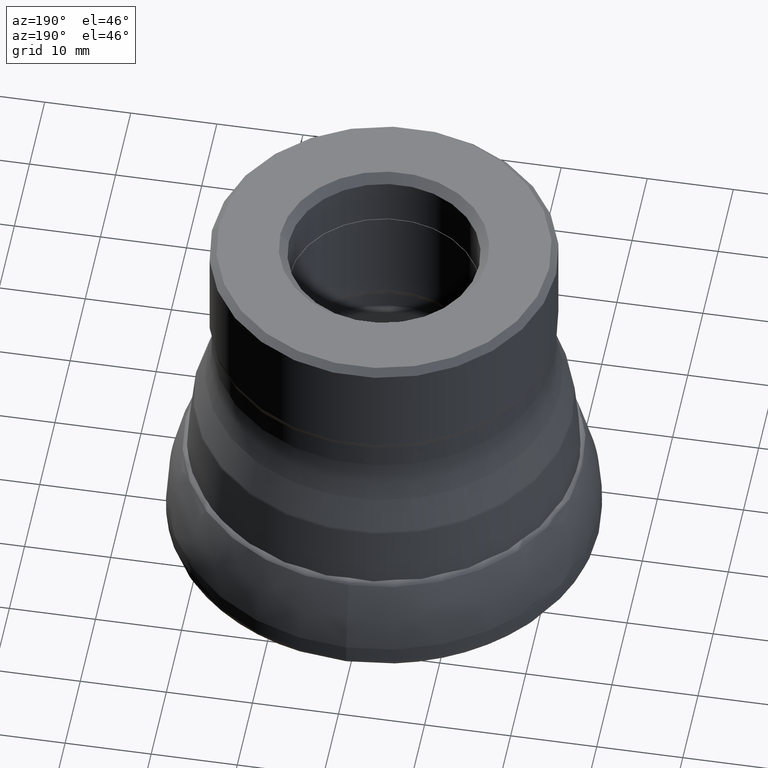
[diagram: clean part render]
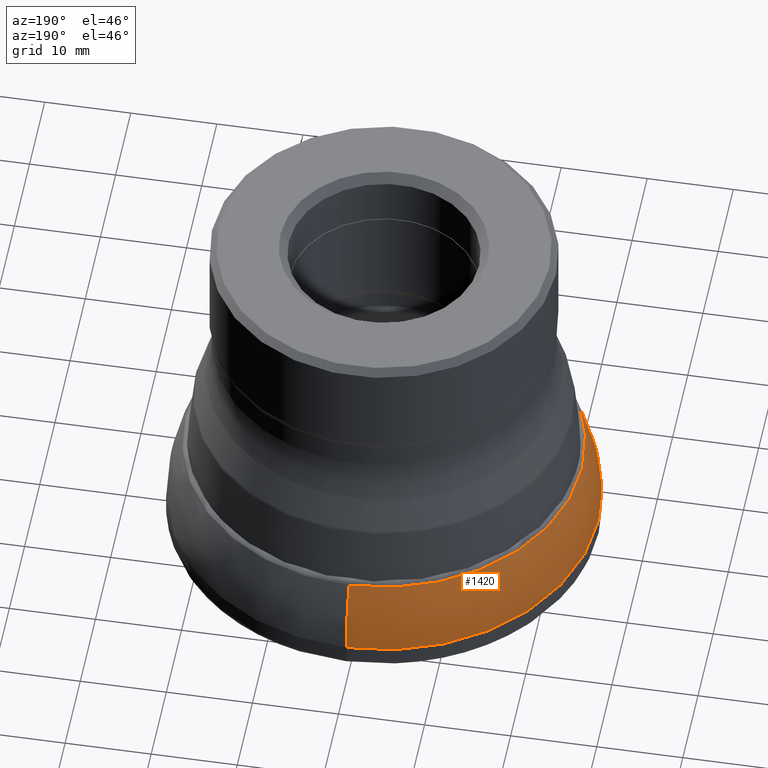
[diagram: same view with one face highlighted and labeled with its STEP entity id]
A machine part, auxiliary view. The second image highlights one B-rep face of the part: STEP entity #1420.
In plain terms, the highlighted face is a freeform B-spline surface patch.
Its self-contained STEP definition (entity closure, byte-faithful):
#19 = CARTESIAN_POINT ( 'NONE',  ( 1.637695884795258400E-013, -23.45273718887886000, -11.94174610841723100 ) ) ;
#27 = EDGE_CURVE ( 'NONE', #2843, #1379, #2055, .T. ) ;
#39 = CARTESIAN_POINT ( 'NONE',  ( 1.611329919527518100E-013, -23.07516155966933300, -12.91075774158583100 ) ) ;
#62 = CARTESIAN_POINT ( 'NONE',  ( -1.095629021342701400E-014, 24.67137226127644200, -7.191401456064427900 ) ) ;
#67 = CARTESIAN_POINT ( 'NONE',  ( 1.717524934167246500E-013, -24.59593461175895300, -7.651955085207505100 ) ) ;
#74 = CARTESIAN_POINT ( 'NONE',  ( 1.704946417210949600E-013, -24.41580308969753300, -8.585308474594739900 ) ) ;
#91 = CARTESIAN_POINT ( 'NONE',  ( -1.107387611861449000E-014, 24.93615218066963000, -4.530690978039407600 ) ) ;
#120 = CARTESIAN_POINT ( 'NONE',  ( -1.736501701411937400E-013, 24.86769271960808300, -5.573869614410038600 ) ) ;
#124 = CARTESIAN_POINT ( 'NONE',  ( 1.731382138776598300E-013, -24.79437766879593100, -6.284141263681696900 ) ) ;
#147 = CARTESIAN_POINT ( 'NONE',  ( -1.691232385893373300E-013, 24.21941035568797000, -9.438302989123156900 ) ) ;
#196 = CARTESIAN_POINT ( 'NONE',  ( -47.56643853140923300, -23.78321926570487900, -10.97322852328703400 ) ) ;
#207 = CARTESIAN_POINT ( 'NONE',  ( -46.29577894291878000, 23.14788947145921200, -12.73419449725517800 ) ) ;
#227 = CARTESIAN_POINT ( 'NONE',  ( 1.616408482464067300E-013, -23.14788947145923000, -12.73419449725518300 ) ) ;
#266 = CARTESIAN_POINT ( 'NONE',  ( 1.741282200027210600E-013, -24.93615218066963000, -4.530690978039413800 ) ) ;
#315 = AXIS2_PLACEMENT_3D ( 'NONE', #2488, #1253, #359 ) ;
#327 = CARTESIAN_POINT ( 'NONE',  ( -1.106505801608547400E-014, 24.91629557903774700, -4.916599764276681700 ) ) ;
#334 = CARTESIAN_POINT ( 'NONE',  ( -1.642597091873621100E-013, 23.52292526383484600, -11.74859640136338800 ) ) ;
#358 = CARTESIAN_POINT ( 'NONE',  ( -49.47485758669925100, -24.73742879334989600, -6.735362749791277400 ) ) ;
#359 = DIRECTION ( 'NONE',  ( 0.0000000000000000000, 1.000000000000000000, 1.503541781487458300E-016 ) ) ;
#366 = CARTESIAN_POINT ( 'NONE',  ( -1.700659019349354500E-013, 24.35440511208418400, -8.869109861484815800 ) ) ;
#387 = CARTESIAN_POINT ( 'NONE',  ( -1.740786323446743500E-013, 24.92905094580192600, -4.683872169119760900 ) ) ;
#390 = CARTESIAN_POINT ( 'NONE',  ( 1.697599178910833000E-013, -24.31058645545152400, -9.057416699671613000 ) ) ;
#415 = CARTESIAN_POINT ( 'NONE',  ( 1.660773324876438100E-013, -23.78321926570454200, -10.97322852328703400 ) ) ;
#424 = CARTESIAN_POINT ( 'NONE',  ( -1.084279470195851600E-014, 24.41580308969753700, -8.585308474594732800 ) ) ;
#495 = CARTESIAN_POINT ( 'NONE',  ( 1.626198904318173900E-013, -23.28809388477210300, -12.38239787145869100 ) ) ;
#540 = CARTESIAN_POINT ( 'NONE',  ( -49.87230436133960900, 24.93615218066960900, -4.530690978039407600 ) ) ;
#554 = CARTESIAN_POINT ( 'NONE',  ( -1.062770700212759300E-014, 23.93146864729228800, -10.49097506306470800 ) ) ;
#557 = CARTESIAN_POINT ( 'NONE',  ( 1.737508360184892000E-013, -24.88210864619138400, -5.397273047007519000 ) ) ;
#564 = CARTESIAN_POINT ( 'NONE',  ( -1.034199121220253100E-014, 23.28809388477210600, -12.38239787145868600 ) ) ;
#565 = CARTESIAN_POINT ( 'NONE',  ( -49.68513281558264800, -24.84256640779159000, -5.838024925649479600 ) ) ;
#571 = CARTESIAN_POINT ( 'NONE',  ( -1.739579527909446700E-013, 24.91176894684246800, -4.995310742142274700 ) ) ;
#574 = CARTESIAN_POINT ( 'NONE',  ( -1.098562520656078700E-014, 24.73742879334954700, -6.735362749791271100 ) ) ;
#586 = CARTESIAN_POINT ( 'NONE',  ( 1.717524934167246500E-013, -24.59593461175895300, -7.651955085207505100 ) ) ;
#618 = CARTESIAN_POINT ( 'NONE',  ( -46.15032311934747600, 23.07516155967356400, -12.91075774158755100 ) ) ;
#624 = CARTESIAN_POINT ( 'NONE',  ( -1.049106352159481100E-014, 23.62377488328724700, -11.45699947641913100 ) ) ;
#642 = CARTESIAN_POINT ( 'NONE',  ( 1.704946417210949600E-013, -24.41580308969753300, -8.585308474594739900 ) ) ;
#655 = CARTESIAN_POINT ( 'NONE',  ( -49.02166748683928400, 24.51083374341945700, -8.116703194540388500 ) ) ;
#731 = CIRCLE ( 'NONE', #2548, 24.93615218066963000 ) ;
#768 = CARTESIAN_POINT ( 'NONE',  ( -47.86293729458490300, 23.93146864729226300, -10.49097506306470800 ) ) ;
#777 = CARTESIAN_POINT ( 'NONE',  ( -1.107125202241970700E-014, 24.93024324134711700, -4.658153085730059900 ) ) ;
#781 = CARTESIAN_POINT ( 'NONE',  ( -1.074471242927419200E-014, 24.19494144634119700, -9.532657396468394500 ) ) ;
#788 = CARTESIAN_POINT ( 'NONE',  ( -49.83259115807582900, 24.91629557903772300, -4.916599764276681700 ) ) ;
#805 = CARTESIAN_POINT ( 'NONE',  ( -1.732837028914779000E-013, 24.81521252364672100, -6.106026376663790800 ) ) ;
#809 = CARTESIAN_POINT ( 'NONE',  ( -1.068862259963463800E-014, 24.06863837840914000, -10.01064354502307200 ) ) ;
#817 = CARTESIAN_POINT ( 'NONE',  ( -49.19186922351805400, -24.59593461175929400, -7.651955085207504200 ) ) ;
#842 = VERTEX_POINT ( 'NONE', #2280 ) ;
#864 = CARTESIAN_POINT ( 'NONE',  ( 1.689523731086051700E-013, -24.19494144634119300, -9.532657396468399800 ) ) ;
#870 = CARTESIAN_POINT ( 'NONE',  ( 1.680704034991583300E-013, -24.06863837840913700, -10.01064354502307700 ) ) ;
#968 = DIRECTION ( 'NONE',  ( -0.0000000000000000000, 1.249000902703301100E-016, -1.000000000000000000 ) ) ;
#974 = CARTESIAN_POINT ( 'NONE',  ( 0.0000000000000000000, 5.658837121440925400E-016, -4.530690978039410200 ) ) ;
#997 = CARTESIAN_POINT ( 'NONE',  ( 1.741282200027210600E-013, -24.93615218066963000, -4.530690978039413800 ) ) ;
#999 = CARTESIAN_POINT ( 'NONE',  ( -47.86293729458471800, -23.93146864729261800, -10.49097506306471300 ) ) ;
#1002 = B_SPLINE_CURVE_WITH_KNOTS ( 'NONE', 3,
 ( #2245, #1503, #2513, #334, #1102, #2027, #1545, #147, #366, #2462, #2001, #1272, #1732, #805, #120, #571, #387, #1294 ),
 .UNSPECIFIED., .F., .F.,
 ( 4, 1, 1, 1, 1, 1, 1, 1, 1, 1, 1, 1, 1, 1, 1, 4 ),
 ( 0.0000000000000000000, 0.07267986867399556200, 0.1446294744445777400, 0.2158145697562261500, 0.2862023623196668900, 0.3557615538478332600, 0.4244623703952659100, 0.4922765844683259000, 0.5591775291410866500, 0.6251401044720856800, 0.6901407765700804400, 0.7541575697021007900, 0.8171700518745362900, 0.8791593143475747700, 0.9401079455654619600, 1.000000000000000000 ),
 .UNSPECIFIED. ) ;
#1012 = CARTESIAN_POINT ( 'NONE',  ( -49.87230436133943100, -24.93615218066997500, -4.530690978039413800 ) ) ;
#1024 = CARTESIAN_POINT ( 'NONE',  ( 1.680704034991583300E-013, -24.06863837840913700, -10.01064354502307700 ) ) ;
#1038 = CARTESIAN_POINT ( 'NONE',  ( 1.734747140435488200E-013, -24.84256640779124200, -5.838024925649479600 ) ) ;
#1044 = CARTESIAN_POINT ( 'NONE',  ( -1.092278916725983800E-014, 24.59593461175895600, -7.651955085207498900 ) ) ;
#1051 = CARTESIAN_POINT ( 'NONE',  ( 1.626198904318173900E-013, -23.28809388477210300, -12.38239787145869100 ) ) ;
#1090 = CARTESIAN_POINT ( 'NONE',  ( -48.38988289268273500, 24.19494144634117900, -9.532657396468394500 ) ) ;
#1102 = CARTESIAN_POINT ( 'NONE',  ( -1.656452306680181900E-013, 23.72133982576333700, -11.16749861297149800 ) ) ;
#1113 = CARTESIAN_POINT ( 'NONE',  ( -1.101091558765962300E-014, 24.79437766879593100, -6.284141263681690700 ) ) ;
#1138 = EDGE_CURVE ( 'NONE', #1379, #842, #731, .T. ) ;
#1214 = CARTESIAN_POINT ( 'NONE',  ( -49.34274452255302600, -24.67137226127678000, -7.191401456064433300 ) ) ;
#1224 = CARTESIAN_POINT ( 'NONE',  ( -46.90547437775786900, -23.45273718887918300, -11.94174610841723100 ) ) ;
#1237 = CARTESIAN_POINT ( 'NONE',  ( -47.56643853140941800, 23.78321926570452400, -10.97322852328702900 ) ) ;
#1253 = DIRECTION ( 'NONE',  ( -0.0000000000000000000, 1.249000902703301100E-016, -1.000000000000000000 ) ) ;
#1272 = CARTESIAN_POINT ( 'NONE',  ( -1.722827192628983800E-013, 24.67186597078913800, -7.192351833296965100 ) ) ;
#1287 = VERTEX_POINT ( 'NONE', #2789 ) ;
#1294 = CARTESIAN_POINT ( 'NONE',  ( -1.741282200027210600E-013, 24.93615218066963000, -4.530690978039397800 ) ) ;
#1315 = ORIENTED_EDGE ( 'NONE', *, *, #2716, .F. ) ;
#1321 = FACE_OUTER_BOUND ( 'NONE', #1715, .T. ) ;
#1323 = CARTESIAN_POINT ( 'NONE',  ( -47.24754976657482100, 23.62377488328722600, -11.45699947641913100 ) ) ;
#1379 = VERTEX_POINT ( 'NONE', #997 ) ;
#1387 = EDGE_CURVE ( 'NONE', #2843, #1287, #1773, .T. ) ;
#1406 = ORIENTED_EDGE ( 'NONE', *, *, #27, .T. ) ;
#1420 = ADVANCED_FACE ( 'NONE', ( #1321 ), #2040, .T. ) ;
#1456 = CARTESIAN_POINT ( 'NONE',  ( -48.62117291090321900, -24.31058645545186500, -9.057416699671613000 ) ) ;
#1462 = CARTESIAN_POINT ( 'NONE',  ( -1.056187105139752900E-014, 23.78321926570454500, -10.97322852328702900 ) ) ;
#1479 = CARTESIAN_POINT ( 'NONE',  ( 1.671125523862610900E-013, -23.93146864729228400, -10.49097506306471300 ) ) ;
#1480 = CARTESIAN_POINT ( 'NONE',  ( -49.76421729238293100, -24.88210864619172800, -5.397273047007519000 ) ) ;
#1497 = CARTESIAN_POINT ( 'NONE',  ( -49.58875533759201900, -24.79437766879627600, -6.284141263681696900 ) ) ;
#1503 = CARTESIAN_POINT ( 'NONE',  ( -1.617419184204699800E-013, 23.16236329564080500, -12.69905605738181700 ) ) ;
#1545 = CARTESIAN_POINT ( 'NONE',  ( -1.680739020206743700E-013, 24.06913938660258600, -10.01156377887556700 ) ) ;
#1547 = CARTESIAN_POINT ( 'NONE',  ( -48.38988289268254300, -24.19494144634153100, -9.532657396468399800 ) ) ;
#1564 = CARTESIAN_POINT ( 'NONE',  ( 1.649639383160570800E-013, -23.62377488328724300, -11.45699947641913500 ) ) ;
#1569 = ORIENTED_EDGE ( 'NONE', *, *, #1387, .F. ) ;
#1573 = CARTESIAN_POINT ( 'NONE',  ( -48.83160617939542200, 24.41580308969751900, -8.585308474594734600 ) ) ;
#1621 = DIRECTION ( 'NONE',  ( 0.0000000000000000000, 1.000000000000000000, 1.391332121658734000E-016 ) ) ;
#1692 = CARTESIAN_POINT ( 'NONE',  ( 1.731382138776598300E-013, -24.79437766879593100, -6.284141263681696900 ) ) ;
#1715 = EDGE_LOOP ( 'NONE', ( #1569, #1406, #2909, #1315 ) ) ;
#1725 = CARTESIAN_POINT ( 'NONE',  ( -48.13727675681860800, 24.06863837840911600, -10.01064354502307000 ) ) ;
#1732 = CARTESIAN_POINT ( 'NONE',  ( -1.728284422590970300E-013, 24.75001660990718500, -6.645677643369372900 ) ) ;
#1734 = CARTESIAN_POINT ( 'NONE',  ( 1.727405420058815100E-013, -24.73742879334954700, -6.735362749791277400 ) ) ;
#1773 = CIRCLE ( 'NONE', #315, 23.07516155966933300 ) ;
#1786 = CARTESIAN_POINT ( 'NONE',  ( 1.689523731086051700E-013, -24.19494144634119300, -9.532657396468399800 ) ) ;
#1797 = CARTESIAN_POINT ( 'NONE',  ( -48.62117291090339700, 24.31058645545150700, -9.057416699671605900 ) ) ;
#1802 = CARTESIAN_POINT ( 'NONE',  ( 1.711582372292713400E-013, -24.51083374341947200, -8.116703194540395600 ) ) ;
#1803 = CARTESIAN_POINT ( 'NONE',  ( 1.711582372292713400E-013, -24.51083374341947200, -8.116703194540395600 ) ) ;
#1859 = CARTESIAN_POINT ( 'NONE',  ( 1.616408482464067300E-013, -23.14788947145923000, -12.73419449725518300 ) ) ;
#1914 = CARTESIAN_POINT ( 'NONE',  ( -49.86048648269457600, 24.93024324134709600, -4.658153085730059900 ) ) ;
#1919 = CARTESIAN_POINT ( 'NONE',  ( -1.041510752703040600E-014, 23.45273718887886400, -11.94174610841722600 ) ) ;
#1944 = CARTESIAN_POINT ( 'NONE',  ( 1.740869580999672000E-013, -24.93024324134711700, -4.658153085730066100 ) ) ;
#1946 = CARTESIAN_POINT ( 'NONE',  ( 1.741282200027210600E-013, -24.93615218066963000, -4.530690978039413800 ) ) ;
#1953 = CARTESIAN_POINT ( 'NONE',  ( 1.697599178910833000E-013, -24.31058645545152400, -9.057416699671613000 ) ) ;
#1955 = CARTESIAN_POINT ( 'NONE',  ( 1.740869580999672000E-013, -24.93024324134711700, -4.658153085730066100 ) ) ;
#1963 = CARTESIAN_POINT ( 'NONE',  ( -49.68513281558284000, 24.84256640779121700, -5.838024925649473400 ) ) ;
#1969 = CARTESIAN_POINT ( 'NONE',  ( -46.29577894291859500, -23.14788947145955000, -12.73419449725518300 ) ) ;
#1974 = CARTESIAN_POINT ( 'NONE',  ( -49.47485758669944300, 24.73742879334953000, -6.735362749791271100 ) ) ;
#2001 = CARTESIAN_POINT ( 'NONE',  ( -1.716425254945201000E-013, 24.58018657940072400, -7.745524957410780500 ) ) ;
#2027 = CARTESIAN_POINT ( 'NONE',  ( -1.669151393530979400E-013, 23.90319797733812000, -10.58819071384855800 ) ) ;
#2030 = CARTESIAN_POINT ( 'NONE',  ( -47.24754976657463600, -23.62377488328757400, -11.45699947641913700 ) ) ;
#2040 =( BOUNDED_SURFACE ( )  B_SPLINE_SURFACE ( 3, 3, ( 
 ( #2292, #2256, #618, #2565 ),
 ( #1859, #1969, #207, #2240 ),
 ( #495, #2181, #2830, #564 ),
 ( #2396, #1224, #2856, #1919 ),
 ( #1564, #2030, #1323, #624 ),
 ( #415, #196, #1237, #1462 ),
 ( #2861, #999, #768, #554 ),
 ( #1024, #2445, #1725, #809 ),
 ( #1786, #1547, #1090, #781 ),
 ( #390, #1456, #1797, #2045 ),
 ( #642, #2286, #1573, #424 ),
 ( #1803, #2057, #655, #2293 ),
 ( #586, #817, #2220, #1044 ),
 ( #2677, #1214, #2210, #62 ),
 ( #2454, #358, #1974, #574 ),
 ( #124, #1497, #2663, #1113 ),
 ( #1038, #565, #1963, #2198 ),
 ( #2264, #1480, #2886, #2656 ),
 ( #2438, #2186, #788, #327 ),
 ( #1955, #2425, #1914, #777 ),
 ( #1946, #1012, #540, #91 ) ),
 .UNSPECIFIED., .F., .F., .F. ) 
 B_SPLINE_SURFACE_WITH_KNOTS ( ( 4, 1, 1, 1, 1, 1, 1, 1, 1, 1, 1, 1, 1, 1, 1, 1, 1, 1, 4 ),
 ( 4, 4 ),
 ( 0.0000000000000000000, 0.06061639735590911700, 0.1207296942584851500, 0.1803198638361583100, 0.2393675741311836200, 0.2978542050836363000, 0.3557618626823480500, 0.4130733903178768800, 0.4697723773893080500, 0.5258431652320347800, 0.5812708504478463200, 0.6360412857311701400, 0.6901410782964418900, 0.7435575860212226800, 0.7962789114277276600, 0.8482938936320358900, 0.8995920983953873400, 0.9501638064157255100, 1.000000000000000000 ),
 ( 0.0000000000000000000, 1.000000000000000000 ),
 .UNSPECIFIED. ) 
 GEOMETRIC_REPRESENTATION_ITEM ( )  RATIONAL_B_SPLINE_SURFACE ( (
 ( 1.000000000000000000, 0.3333333333333311500, 0.3333333333333311500, 1.000000000000000000),
 ( 1.000000000000000000, 0.3333333333333311500, 0.3333333333333311500, 1.000000000000000000),
 ( 1.000000000000000000, 0.3333333333333311500, 0.3333333333333311500, 1.000000000000000000),
 ( 1.000000000000000000, 0.3333333333333311500, 0.3333333333333311500, 1.000000000000000000),
 ( 1.000000000000000000, 0.3333333333333311500, 0.3333333333333311500, 1.000000000000000000),
 ( 1.000000000000000000, 0.3333333333333311500, 0.3333333333333311500, 1.000000000000000000),
 ( 1.000000000000000000, 0.3333333333333311500, 0.3333333333333311500, 1.000000000000000000),
 ( 1.000000000000000000, 0.3333333333333311500, 0.3333333333333311500, 1.000000000000000000),
 ( 1.000000000000000000, 0.3333333333333311500, 0.3333333333333311500, 1.000000000000000000),
 ( 1.000000000000000000, 0.3333333333333311500, 0.3333333333333311500, 1.000000000000000000),
 ( 1.000000000000000000, 0.3333333333333311500, 0.3333333333333311500, 1.000000000000000000),
 ( 1.000000000000000000, 0.3333333333333311500, 0.3333333333333311500, 1.000000000000000000),
 ( 1.000000000000000000, 0.3333333333333311500, 0.3333333333333311500, 1.000000000000000000),
 ( 1.000000000000000000, 0.3333333333333311500, 0.3333333333333311500, 1.000000000000000000),
 ( 1.000000000000000000, 0.3333333333333311500, 0.3333333333333311500, 1.000000000000000000),
 ( 1.000000000000000000, 0.3333333333333311500, 0.3333333333333311500, 1.000000000000000000),
 ( 1.000000000000000000, 0.3333333333333311500, 0.3333333333333311500, 1.000000000000000000),
 ( 1.000000000000000000, 0.3333333333333311500, 0.3333333333333311500, 1.000000000000000000),
 ( 1.000000000000000000, 0.3333333333333311500, 0.3333333333333311500, 1.000000000000000000),
 ( 1.000000000000000000, 0.3333333333333311500, 0.3333333333333311500, 1.000000000000000000),
 ( 1.000000000000000000, 0.3333333333333311500, 0.3333333333333311500, 1.000000000000000000) ) ) 
 REPRESENTATION_ITEM ( '' )  SURFACE ( )  );
#2045 = CARTESIAN_POINT ( 'NONE',  ( -1.079606912999312200E-014, 24.31058645545152800, -9.057416699671605900 ) ) ;
#2055 = B_SPLINE_CURVE_WITH_KNOTS ( 'NONE', 3,
 ( #39, #227, #1051, #19, #2170, #2541, #1479, #870, #864, #1953, #74, #1802, #67, #2398, #1734, #1692, #2274, #557, #2406, #1944, #266 ),
 .UNSPECIFIED., .F., .F.,
 ( 4, 1, 1, 1, 1, 1, 1, 1, 1, 1, 1, 1, 1, 1, 1, 1, 1, 1, 4 ),
 ( 0.0000000000000000000, 0.06061639735590911700, 0.1207296942584851500, 0.1803198638361583100, 0.2393675741311836200, 0.2978542050836363000, 0.3557618626823480500, 0.4130733903178768800, 0.4697723773893080500, 0.5258431652320347800, 0.5812708504478463200, 0.6360412857311701400, 0.6901410782964418900, 0.7435575860212226800, 0.7962789114277276600, 0.8482938936320358900, 0.8995920983953873400, 0.9501638064157255100, 1.000000000000000000 ),
 .UNSPECIFIED. ) ;
#2057 = CARTESIAN_POINT ( 'NONE',  ( -49.02166748683909200, -24.51083374341981300, -8.116703194540395600 ) ) ;
#2170 = CARTESIAN_POINT ( 'NONE',  ( 1.649639383160570800E-013, -23.62377488328724300, -11.45699947641913500 ) ) ;
#2181 = CARTESIAN_POINT ( 'NONE',  ( -46.57618776954434700, -23.28809388477242600, -12.38239787145869300 ) ) ;
#2186 = CARTESIAN_POINT ( 'NONE',  ( -49.83259115807565100, -24.91629557903809600, -4.916599764276687900 ) ) ;
#2198 = CARTESIAN_POINT ( 'NONE',  ( -1.103231568668372300E-014, 24.84256640779124200, -5.838024925649473400 ) ) ;
#2204 = CARTESIAN_POINT ( 'NONE',  ( 1.611329919527518100E-013, -23.07516155966933300, -12.91075774158583100 ) ) ;
#2210 = CARTESIAN_POINT ( 'NONE',  ( -49.34274452255323200, 24.67137226127641700, -7.191401456064427900 ) ) ;
#2220 = CARTESIAN_POINT ( 'NONE',  ( -49.19186922351824600, 24.59593461175893100, -7.651955085207498900 ) ) ;
#2240 = CARTESIAN_POINT ( 'NONE',  ( -1.027972794507693000E-014, 23.14788947145923400, -12.73419449725517800 ) ) ;
#2245 = CARTESIAN_POINT ( 'NONE',  ( -1.611329919527517800E-013, 23.07516155966933600, -12.91075774158581700 ) ) ;
#2256 = CARTESIAN_POINT ( 'NONE',  ( -46.15032311934730600, -23.07516155967390100, -12.91075774158755600 ) ) ;
#2264 = CARTESIAN_POINT ( 'NONE',  ( 1.737508360184892000E-013, -24.88210864619138400, -5.397273047007519000 ) ) ;
#2274 = CARTESIAN_POINT ( 'NONE',  ( 1.734747140435488200E-013, -24.84256640779124200, -5.838024925649479600 ) ) ;
#2280 = CARTESIAN_POINT ( 'NONE',  ( -1.741282200027210600E-013, 24.93615218066963000, -4.530690978039397800 ) ) ;
#2286 = CARTESIAN_POINT ( 'NONE',  ( -48.83160617939521600, -24.41580308969787400, -8.585308474594739900 ) ) ;
#2292 = CARTESIAN_POINT ( 'NONE',  ( 1.611329919527814700E-013, -23.07516155967357800, -12.91075774158756000 ) ) ;
#2293 = CARTESIAN_POINT ( 'NONE',  ( -1.088499678988141300E-014, 24.51083374341947500, -8.116703194540388500 ) ) ;
#2396 = CARTESIAN_POINT ( 'NONE',  ( 1.637695884795258400E-013, -23.45273718887886000, -11.94174610841723100 ) ) ;
#2398 = CARTESIAN_POINT ( 'NONE',  ( 1.722792717077976200E-013, -24.67137226127643900, -7.191401456064433300 ) ) ;
#2406 = CARTESIAN_POINT ( 'NONE',  ( 1.739895620946199000E-013, -24.91629557903774700, -4.916599764276687900 ) ) ;
#2425 = CARTESIAN_POINT ( 'NONE',  ( -49.86048648269439100, -24.93024324134746200, -4.658153085730066100 ) ) ;
#2438 = CARTESIAN_POINT ( 'NONE',  ( 1.739895620946199000E-013, -24.91629557903774700, -4.916599764276687900 ) ) ;
#2445 = CARTESIAN_POINT ( 'NONE',  ( -48.13727675681842300, -24.06863837840947400, -10.01064354502307600 ) ) ;
#2454 = CARTESIAN_POINT ( 'NONE',  ( 1.727405420058815100E-013, -24.73742879334954700, -6.735362749791277400 ) ) ;
#2462 = CARTESIAN_POINT ( 'NONE',  ( -1.709046610548368100E-013, 24.47452019197449500, -8.304641566072353600 ) ) ;
#2488 = CARTESIAN_POINT ( 'NONE',  ( 0.0000000000000000000, 1.612554807382433200E-015, -12.91075774158582800 ) ) ;
#2513 = CARTESIAN_POINT ( 'NONE',  ( -1.629070351688218600E-013, 23.32921464543749600, -12.27758507255573600 ) ) ;
#2541 = CARTESIAN_POINT ( 'NONE',  ( 1.660773324876438100E-013, -23.78321926570454200, -10.97322852328703400 ) ) ;
#2548 = AXIS2_PLACEMENT_3D ( 'NONE', #974, #968, #1621 ) ;
#2565 = CARTESIAN_POINT ( 'NONE',  ( -1.024743026419800000E-014, 23.07516155967358200, -12.91075774158755400 ) ) ;
#2656 = CARTESIAN_POINT ( 'NONE',  ( -1.104987596809054100E-014, 24.88210864619138400, -5.397273047007512800 ) ) ;
#2663 = CARTESIAN_POINT ( 'NONE',  ( -49.58875533759220400, 24.79437766879591000, -6.284141263681691600 ) ) ;
#2677 = CARTESIAN_POINT ( 'NONE',  ( 1.722792717077976200E-013, -24.67137226127643900, -7.191401456064433300 ) ) ;
#2716 = EDGE_CURVE ( 'NONE', #1287, #842, #1002, .T. ) ;
#2789 = CARTESIAN_POINT ( 'NONE',  ( -1.611329919527517800E-013, 23.07516155966933600, -12.91075774158581700 ) ) ;
#2830 = CARTESIAN_POINT ( 'NONE',  ( -46.57618776954453200, 23.28809388477208100, -12.38239787145868800 ) ) ;
#2843 = VERTEX_POINT ( 'NONE', #2204 ) ;
#2856 = CARTESIAN_POINT ( 'NONE',  ( -46.90547437775806100, 23.45273718887884200, -11.94174610841722600 ) ) ;
#2861 = CARTESIAN_POINT ( 'NONE',  ( 1.671125523862610900E-013, -23.93146864729228400, -10.49097506306471300 ) ) ;
#2886 = CARTESIAN_POINT ( 'NONE',  ( -49.76421729238311500, 24.88210864619136600, -5.397273047007512800 ) ) ;
#2909 = ORIENTED_EDGE ( 'NONE', *, *, #1138, .T. ) ;